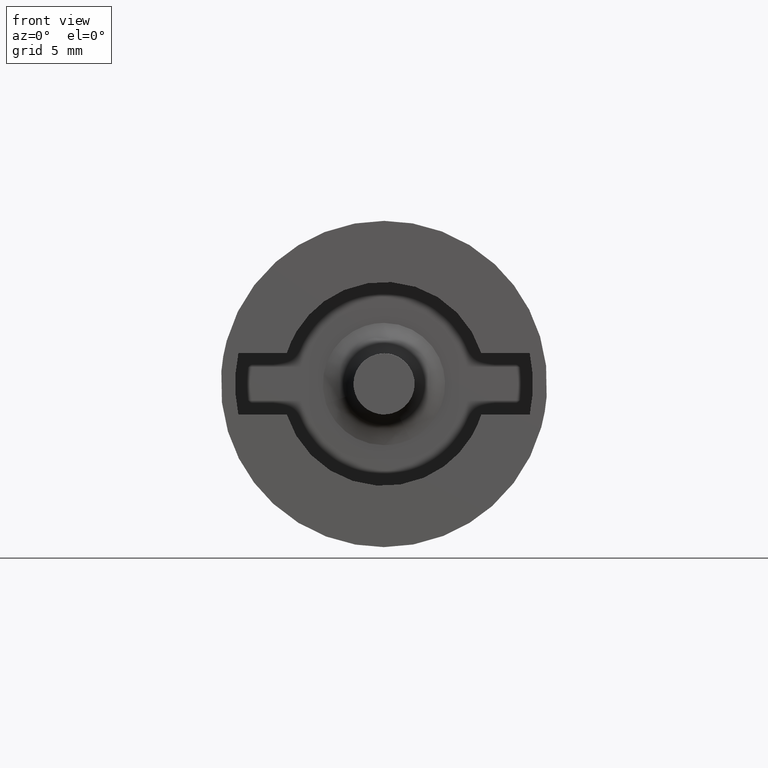
[diagram: clean part render]
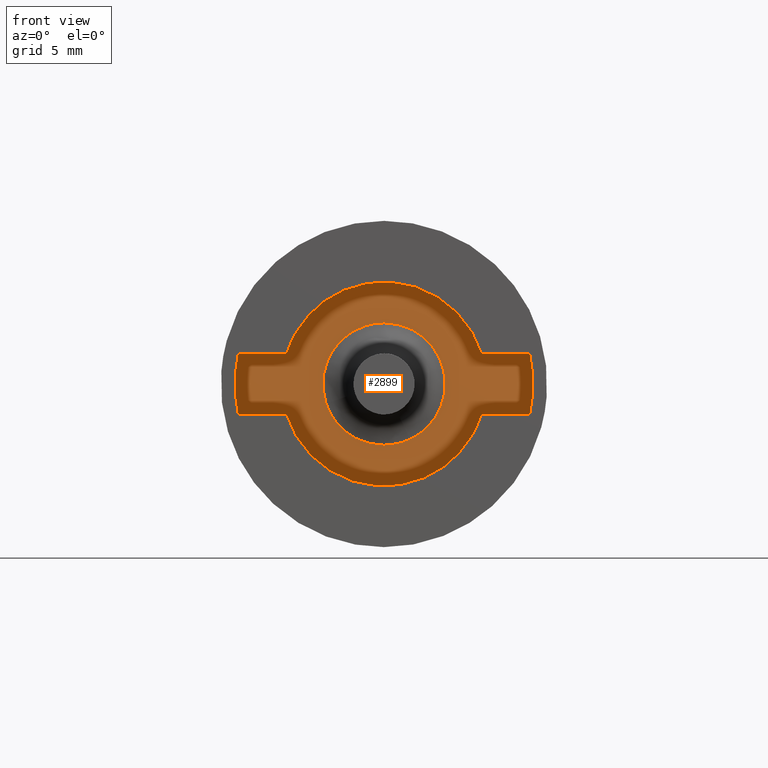
[diagram: same view with one face highlighted and labeled with its STEP entity id]
A machine part, front view. The second image highlights one B-rep face of the part: STEP entity #2899.
In plain terms, the highlighted face is a freeform B-spline surface patch.
Its self-contained STEP definition (entity closure, byte-faithful):
#2331=CARTESIAN_POINT('',(-2.843812627645864,-4.400000210000016,-0.955369125438690));
#2332=VERTEX_POINT('',#2331);
#2333=CARTESIAN_POINT('',(0.0,-4.400000210000000,3.000000071246180));
#2334=VERTEX_POINT('',#2333);
#2335=CARTESIAN_POINT('',(-2.843812627645864,-4.400000210000016,-0.955369125438690));
#2336=CARTESIAN_POINT('',(-3.000000071246180,-4.400000210000000,-0.490451626742867));
#2337=CARTESIAN_POINT('',(-3.000000071246180,-4.400000210000000,0.0));
#2338=CARTESIAN_POINT('',(-3.000000071246181,-4.400000209999999,3.000000071246181));
#2339=CARTESIAN_POINT('',(0.0,-4.400000210000000,3.000000071246180));
#2347=(BOUNDED_CURVE()B_SPLINE_CURVE(2,(#2335,#2336,#2337,#2338,#2339),.UNSPECIFIED.,.F.,.U.)B_SPLINE_CURVE_WITH_KNOTS((3,2,3),(0.695865557706245,0.750000000000000,1.0),.UNSPECIFIED.)CURVE()GEOMETRIC_REPRESENTATION_ITEM()RATIONAL_B_SPLINE_CURVE((0.900621820752298,0.936577555791645,1.0,0.707106781186548,1.0))REPRESENTATION_ITEM(''));
#2348=EDGE_CURVE('',#2332,#2334,#2347,.T.);
#2369=CARTESIAN_POINT('',(1.277337905000718,-4.400000210000015,-2.714481221655138));
#2370=VERTEX_POINT('',#2369);
#2386=CARTESIAN_POINT('',(0.0,-4.400000210000000,3.000000071246180));
#2387=CARTESIAN_POINT('',(3.000000071246181,-4.400000209999999,3.000000071246181));
#2388=CARTESIAN_POINT('',(3.000000071246180,-4.400000210000000,0.0));
#2389=CARTESIAN_POINT('',(3.000000071246181,-4.400000210000000,-1.903857937759816));
#2390=CARTESIAN_POINT('',(1.277337905000718,-4.400000210000015,-2.714481221655138));
#2398=(BOUNDED_CURVE()B_SPLINE_CURVE(2,(#2386,#2387,#2388,#2389,#2390),.UNSPECIFIED.,.F.,.U.)B_SPLINE_CURVE_WITH_KNOTS((3,2,3),(0.0,0.250000000000000,0.427668464630058),.UNSPECIFIED.)CURVE()GEOMETRIC_REPRESENTATION_ITEM()RATIONAL_B_SPLINE_CURVE((1.0,0.707106781186548,1.0,0.791848446051433,0.879552628106087))REPRESENTATION_ITEM(''));
#2399=EDGE_CURVE('',#2334,#2370,#2398,.T.);
#2437=CARTESIAN_POINT('',(0.0,-4.400000210000000,-3.000000071246180));
#2438=VERTEX_POINT('',#2437);
#2439=CARTESIAN_POINT('',(0.0,-4.400000210000000,-3.000000071246180));
#2440=CARTESIAN_POINT('',(-2.156925854794995,-4.400000210000001,-3.000000071246180));
#2441=CARTESIAN_POINT('',(-2.843812627645864,-4.400000210000016,-0.955369125438690));
#2449=(BOUNDED_CURVE()B_SPLINE_CURVE(2,(#2439,#2440,#2441),.UNSPECIFIED.,.F.,.U.)B_SPLINE_CURVE_WITH_KNOTS((3,3),(0.500000000000000,0.695865557706245),.UNSPECIFIED.)CURVE()GEOMETRIC_REPRESENTATION_ITEM()RATIONAL_B_SPLINE_CURVE((1.0,0.770529225394903,0.900621820752297))REPRESENTATION_ITEM(''));
#2450=EDGE_CURVE('',#2438,#2332,#2449,.T.);
#2452=CARTESIAN_POINT('',(1.277337905000718,-4.400000210000015,-2.714481221655138));
#2453=CARTESIAN_POINT('',(0.670579464681851,-4.400000210000000,-3.000000071246181));
#2454=CARTESIAN_POINT('',(0.0,-4.400000210000000,-3.000000071246180));
#2462=(BOUNDED_CURVE()B_SPLINE_CURVE(2,(#2452,#2453,#2454),.UNSPECIFIED.,.F.,.U.)B_SPLINE_CURVE_WITH_KNOTS((3,3),(0.427668464630058,0.500000000000000),.UNSPECIFIED.)CURVE()GEOMETRIC_REPRESENTATION_ITEM()RATIONAL_B_SPLINE_CURVE((0.879552628106087,0.915258335135115,1.0))REPRESENTATION_ITEM(''));
#2463=EDGE_CURVE('',#2370,#2438,#2462,.T.);
#2794=CARTESIAN_POINT('',(-8.029270216017908,-4.400000210000000,5.499500018357555));
#2795=CARTESIAN_POINT('',(8.029270738154617,-4.400000210000000,5.499500018357555));
#2796=CARTESIAN_POINT('',(-8.029270216017908,-4.400000210000000,-5.499499750136642));
#2797=CARTESIAN_POINT('',(8.029270738154617,-4.400000210000000,-5.499499750136642));
#2798=B_SPLINE_SURFACE_WITH_KNOTS('',1,1,((#2794,#2796),(#2795,#2797)),.UNSPECIFIED.,.F.,.F.,.U.,(2,2),(2,2),(0.0,16.058540954172528),(0.0,10.998999768494199),.UNSPECIFIED.);
#2799=CARTESIAN_POINT('',(7.144228779129350,-4.400000209999975,1.500000071246125));
#2800=VERTEX_POINT('',#2799);
#2801=CARTESIAN_POINT('',(4.769696233633140,-4.400000209999975,1.500000071246135));
#2802=VERTEX_POINT('',#2801);
#2803=CARTESIAN_POINT('',(7.144228779129350,-4.400000209999975,1.500000071246125));
#2804=CARTESIAN_POINT('',(4.769696233633140,-4.400000209999975,1.500000071246135));
#2805=QUASI_UNIFORM_CURVE('',1,(#2803,#2804),.UNSPECIFIED.,.F.,.U.);
#2806=EDGE_CURVE('',#2800,#2802,#2805,.T.);
#2807=ORIENTED_EDGE('',*,*,#2806,.T.);
#2808=CARTESIAN_POINT('',(-4.769696233633130,-4.400000209999975,1.500000071246170));
#2809=VERTEX_POINT('',#2808);
#2810=CARTESIAN_POINT('',(4.769696233633140,-4.400000209999975,1.500000071246132));
#2811=CARTESIAN_POINT('',(3.668997102794747,-4.400000209999975,5.000000237487251));
#2812=CARTESIAN_POINT('',(0.0,-4.400000209999975,5.000000237487250));
#2813=CARTESIAN_POINT('',(-3.668997102794718,-4.400000209999975,5.000000237487251));
#2814=CARTESIAN_POINT('',(-4.769696233633129,-4.400000209999975,1.500000071246169));
#2822=(BOUNDED_CURVE()B_SPLINE_CURVE(2,(#2810,#2811,#2812,#2813,#2814),.UNSPECIFIED.,.F.,.U.)B_SPLINE_CURVE_WITH_KNOTS((3,2,3),(0.0,0.500000000000000,1.0),.UNSPECIFIED.)CURVE()GEOMETRIC_REPRESENTATION_ITEM()RATIONAL_B_SPLINE_CURVE((1.0,0.806225774829852,1.0,0.806225774829852,1.0))REPRESENTATION_ITEM(''));
#2823=EDGE_CURVE('',#2802,#2809,#2822,.T.);
#2824=ORIENTED_EDGE('',*,*,#2823,.T.);
#2825=CARTESIAN_POINT('',(-7.144228779129490,-4.400000209999975,1.500000071246175));
#2826=VERTEX_POINT('',#2825);
#2827=CARTESIAN_POINT('',(-4.769696233633130,-4.400000209999975,1.500000071246170));
#2828=CARTESIAN_POINT('',(-7.144228779129490,-4.400000209999975,1.500000071246175));
#2829=QUASI_UNIFORM_CURVE('',1,(#2827,#2828),.UNSPECIFIED.,.F.,.U.);
#2830=EDGE_CURVE('',#2809,#2826,#2829,.T.);
#2831=ORIENTED_EDGE('',*,*,#2830,.T.);
#2832=CARTESIAN_POINT('',(-7.144228779129350,-4.400000209999975,-1.500000071246125));
#2833=VERTEX_POINT('',#2832);
#2834=CARTESIAN_POINT('',(-7.144228779129490,-4.400000209999975,1.500000071246175));
#2835=CARTESIAN_POINT('',(-7.459168331500832,-4.400000209999975,1.192622E-014));
#2836=CARTESIAN_POINT('',(-7.144228779129355,-4.400000209999975,-1.500000071246127));
#2844=(BOUNDED_CURVE()B_SPLINE_CURVE(2,(#2834,#2835,#2836),.UNSPECIFIED.,.F.,.U.)CURVE()GEOMETRIC_REPRESENTATION_ITEM()QUASI_UNIFORM_CURVE()RATIONAL_B_SPLINE_CURVE((1.0,0.978661430109138,1.0))REPRESENTATION_ITEM(''));
#2845=EDGE_CURVE('',#2826,#2833,#2844,.T.);
#2846=ORIENTED_EDGE('',*,*,#2845,.T.);
#2847=CARTESIAN_POINT('',(-4.769696233633280,-4.400000209999975,-1.500000071246165));
#2848=VERTEX_POINT('',#2847);
#2849=CARTESIAN_POINT('',(-7.144228779129350,-4.400000209999975,-1.500000071246125));
#2850=CARTESIAN_POINT('',(-4.769696233633280,-4.400000209999975,-1.500000071246165));
#2851=QUASI_UNIFORM_CURVE('',1,(#2849,#2850),.UNSPECIFIED.,.F.,.U.);
#2852=EDGE_CURVE('',#2833,#2848,#2851,.T.);
#2853=ORIENTED_EDGE('',*,*,#2852,.T.);
#2854=CARTESIAN_POINT('',(4.769696233633130,-4.400000209999975,-1.500000071246170));
#2855=VERTEX_POINT('',#2854);
#2856=CARTESIAN_POINT('',(-4.769696233633280,-4.400000209999975,-1.500000071246165));
#2857=CARTESIAN_POINT('',(-3.668997102794753,-4.400000209999975,-5.000000237487250));
#2858=CARTESIAN_POINT('',(0.0,-4.400000209999975,-5.000000237487250));
#2859=CARTESIAN_POINT('',(3.668997102794719,-4.400000209999975,-5.000000237487250));
#2860=CARTESIAN_POINT('',(4.769696233633129,-4.400000209999975,-1.500000071246168));
#2868=(BOUNDED_CURVE()B_SPLINE_CURVE(2,(#2856,#2857,#2858,#2859,#2860),.UNSPECIFIED.,.F.,.U.)B_SPLINE_CURVE_WITH_KNOTS((3,2,3),(0.0,0.500000000000000,1.0),.UNSPECIFIED.)CURVE()GEOMETRIC_REPRESENTATION_ITEM()RATIONAL_B_SPLINE_CURVE((1.0,0.806225774829852,1.0,0.806225774829852,1.0))REPRESENTATION_ITEM(''));
#2869=EDGE_CURVE('',#2848,#2855,#2868,.T.);
#2870=ORIENTED_EDGE('',*,*,#2869,.T.);
#2871=CARTESIAN_POINT('',(7.144228779129490,-4.400000209999975,-1.500000071246165));
#2872=VERTEX_POINT('',#2871);
#2873=CARTESIAN_POINT('',(4.769696233633130,-4.400000209999975,-1.500000071246170));
#2874=CARTESIAN_POINT('',(7.144228779129490,-4.400000209999975,-1.500000071246165));
#2875=QUASI_UNIFORM_CURVE('',1,(#2873,#2874),.UNSPECIFIED.,.F.,.U.);
#2876=EDGE_CURVE('',#2855,#2872,#2875,.T.);
#2877=ORIENTED_EDGE('',*,*,#2876,.T.);
#2878=CARTESIAN_POINT('',(7.144228779129490,-4.400000209999975,-1.500000071246165));
#2879=CARTESIAN_POINT('',(7.459168331500830,-4.400000209999975,-3.585673E-015));
#2880=CARTESIAN_POINT('',(7.144228779129353,-4.400000209999975,1.500000071246125));
#2888=(BOUNDED_CURVE()B_SPLINE_CURVE(2,(#2878,#2879,#2880),.UNSPECIFIED.,.F.,.U.)CURVE()GEOMETRIC_REPRESENTATION_ITEM()QUASI_UNIFORM_CURVE()RATIONAL_B_SPLINE_CURVE((1.0,0.978661430109138,1.0))REPRESENTATION_ITEM(''));
#2889=EDGE_CURVE('',#2872,#2800,#2888,.T.);
#2890=ORIENTED_EDGE('',*,*,#2889,.T.);
#2891=EDGE_LOOP('',(#2807,#2824,#2831,#2846,#2853,#2870,#2877,#2890));
#2892=FACE_OUTER_BOUND('',#2891,.T.);
#2893=ORIENTED_EDGE('',*,*,#2399,.T.);
#2894=ORIENTED_EDGE('',*,*,#2463,.T.);
#2895=ORIENTED_EDGE('',*,*,#2450,.T.);
#2896=ORIENTED_EDGE('',*,*,#2348,.T.);
#2897=EDGE_LOOP('',(#2893,#2894,#2895,#2896));
#2898=FACE_BOUND('',#2897,.T.);
#2899=ADVANCED_FACE('',(#2892,#2898),#2798,.F.);